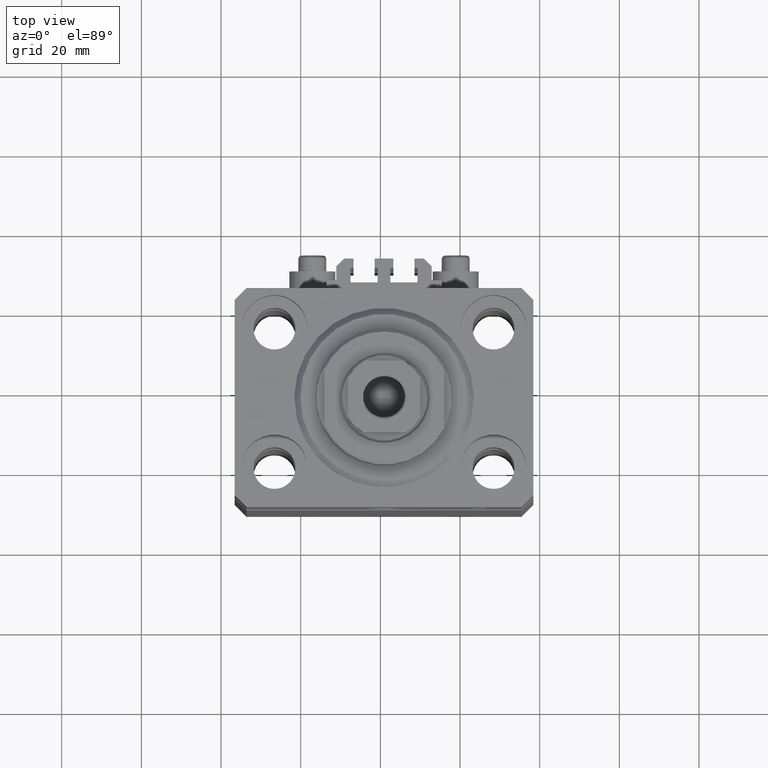
[diagram: clean part render]
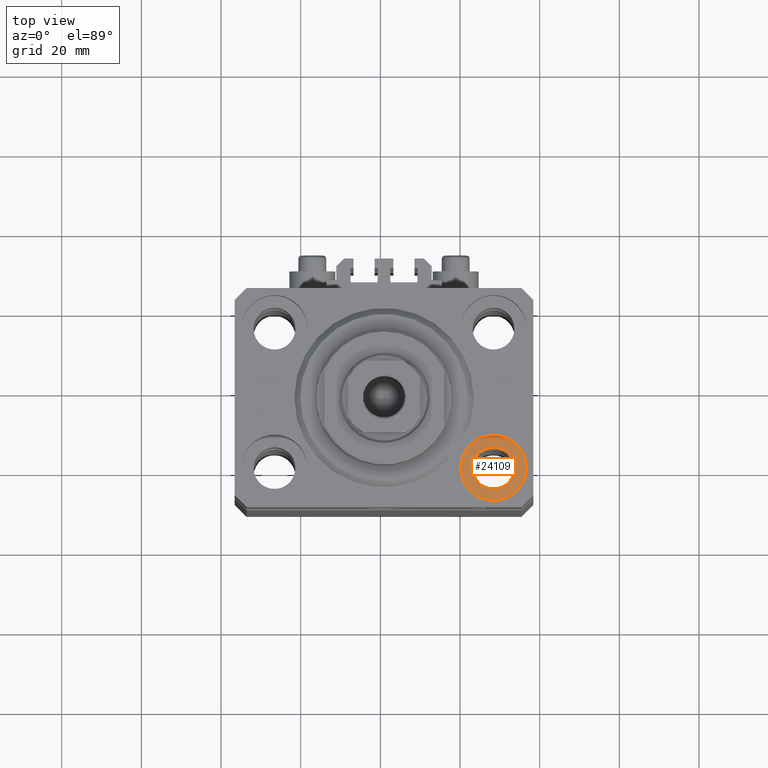
[diagram: same view with one face highlighted and labeled with its STEP entity id]
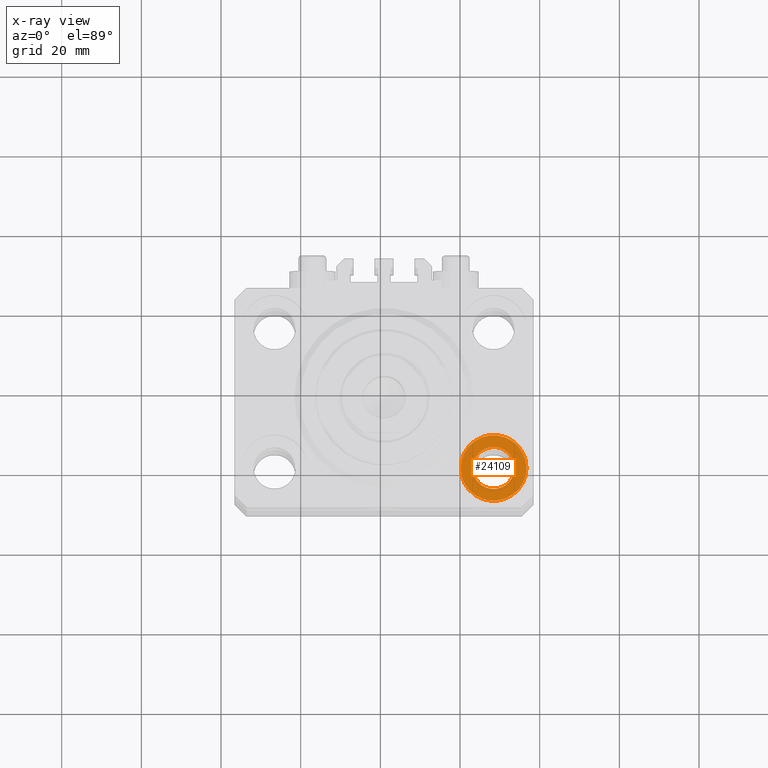
[diagram: x-ray of the same camera — body ghosted, the highlighted face saturated]
A machine part, top view. The second image highlights one B-rep face of the part: STEP entity #24109.
The next image is the same camera in x-ray: the body ghosted, the highlighted face saturated — about 0% of this face is hidden behind the body in this view.
In plain terms, the highlighted planar face has unit normal (0, 0, 1).
Its self-contained STEP definition (entity closure, byte-faithful):
#49 = EDGE_CURVE ( 'NONE', #29905, #9595, #22926, .T. ) ;
#1847 = DIRECTION ( 'NONE',  ( 0.000000000000000000, 0.000000000000000000, 1.000000000000000000 ) ) ;
#3160 = EDGE_CURVE ( 'NONE', #9595, #29905, #8673, .T. ) ;
#3518 = CARTESIAN_POINT ( 'NONE',  ( 32.75000000000000000, -17.50000000000000000, -11.00000000000000000 ) ) ;
#4261 = CARTESIAN_POINT ( 'NONE',  ( 35.75000000000000711, -17.50000000000000000, -11.00000000000000000 ) ) ;
#5870 = CARTESIAN_POINT ( 'NONE',  ( 27.50000000000000355, -17.50000000000000000, -11.00000000000000000 ) ) ;
#7227 = DIRECTION ( 'NONE',  ( 0.000000000000000000, 0.000000000000000000, 1.000000000000000000 ) ) ;
#8673 = CIRCLE ( 'NONE', #20758, 8.250000000000000000 ) ;
#9595 = VERTEX_POINT ( 'NONE', #4261 ) ;
#11614 = AXIS2_PLACEMENT_3D ( 'NONE', #35402, #7227, #32319 ) ;
#12313 = DIRECTION ( 'NONE',  ( 1.000000000000000000, 0.000000000000000000, 0.000000000000000000 ) ) ;
#12466 = EDGE_LOOP ( 'NONE', ( #32531, #15367 ) ) ;
#12974 = DIRECTION ( 'NONE',  ( 1.000000000000000000, 0.000000000000000000, 0.000000000000000000 ) ) ;
#13245 = CARTESIAN_POINT ( 'NONE',  ( 27.50000000000000355, -17.50000000000000000, -11.00000000000000000 ) ) ;
#14583 = DIRECTION ( 'NONE',  ( 0.000000000000000000, 0.000000000000000000, 1.000000000000000000 ) ) ;
#14720 = DIRECTION ( 'NONE',  ( 1.000000000000000000, 0.000000000000000000, 0.000000000000000000 ) ) ;
#15367 = ORIENTED_EDGE ( 'NONE', *, *, #15625, .F. ) ;
#15625 = EDGE_CURVE ( 'NONE', #27860, #44745, #44708, .T. ) ;
#16453 = AXIS2_PLACEMENT_3D ( 'NONE', #5870, #1847, #12974 ) ;
#18265 = DIRECTION ( 'NONE',  ( 0.000000000000000000, 0.000000000000000000, 1.000000000000000000 ) ) ;
#19732 = CARTESIAN_POINT ( 'NONE',  ( 22.25000000000000711, -17.50000000000000000, -11.00000000000000000 ) ) ;
#20555 = ORIENTED_EDGE ( 'NONE', *, *, #3160, .T. ) ;
#20758 = AXIS2_PLACEMENT_3D ( 'NONE', #13245, #14583, #28999 ) ;
#21902 = PLANE ( 'NONE',  #11614 ) ;
#22926 = CIRCLE ( 'NONE', #26707, 8.250000000000000000 ) ;
#24109 = ADVANCED_FACE ( 'NONE', ( #46520, #32550 ), #21902, .T. ) ;
#24285 = AXIS2_PLACEMENT_3D ( 'NONE', #37620, #27198, #12313 ) ;
#26707 = AXIS2_PLACEMENT_3D ( 'NONE', #36245, #18265, #14720 ) ;
#27198 = DIRECTION ( 'NONE',  ( 0.000000000000000000, 0.000000000000000000, 1.000000000000000000 ) ) ;
#27860 = VERTEX_POINT ( 'NONE', #19732 ) ;
#28999 = DIRECTION ( 'NONE',  ( 1.000000000000000000, 0.000000000000000000, 0.000000000000000000 ) ) ;
#29905 = VERTEX_POINT ( 'NONE', #37179 ) ;
#31839 = ORIENTED_EDGE ( 'NONE', *, *, #49, .T. ) ;
#32319 = DIRECTION ( 'NONE',  ( 1.000000000000000000, 0.000000000000000000, -0.000000000000000000 ) ) ;
#32531 = ORIENTED_EDGE ( 'NONE', *, *, #32651, .F. ) ;
#32550 = FACE_OUTER_BOUND ( 'NONE', #32710, .T. ) ;
#32651 = EDGE_CURVE ( 'NONE', #44745, #27860, #42112, .T. ) ;
#32710 = EDGE_LOOP ( 'NONE', ( #20555, #31839 ) ) ;
#35402 = CARTESIAN_POINT ( 'NONE',  ( 27.50000000000000355, -17.50000000000000000, -11.00000000000000000 ) ) ;
#36245 = CARTESIAN_POINT ( 'NONE',  ( 27.50000000000000355, -17.50000000000000000, -11.00000000000000000 ) ) ;
#37179 = CARTESIAN_POINT ( 'NONE',  ( 19.25000000000000000, -17.50000000000000000, -11.00000000000000000 ) ) ;
#37620 = CARTESIAN_POINT ( 'NONE',  ( 27.50000000000000355, -17.50000000000000000, -11.00000000000000000 ) ) ;
#42112 = CIRCLE ( 'NONE', #16453, 5.249999999999997335 ) ;
#44708 = CIRCLE ( 'NONE', #24285, 5.249999999999997335 ) ;
#44745 = VERTEX_POINT ( 'NONE', #3518 ) ;
#46520 = FACE_BOUND ( 'NONE', #12466, .T. ) ;